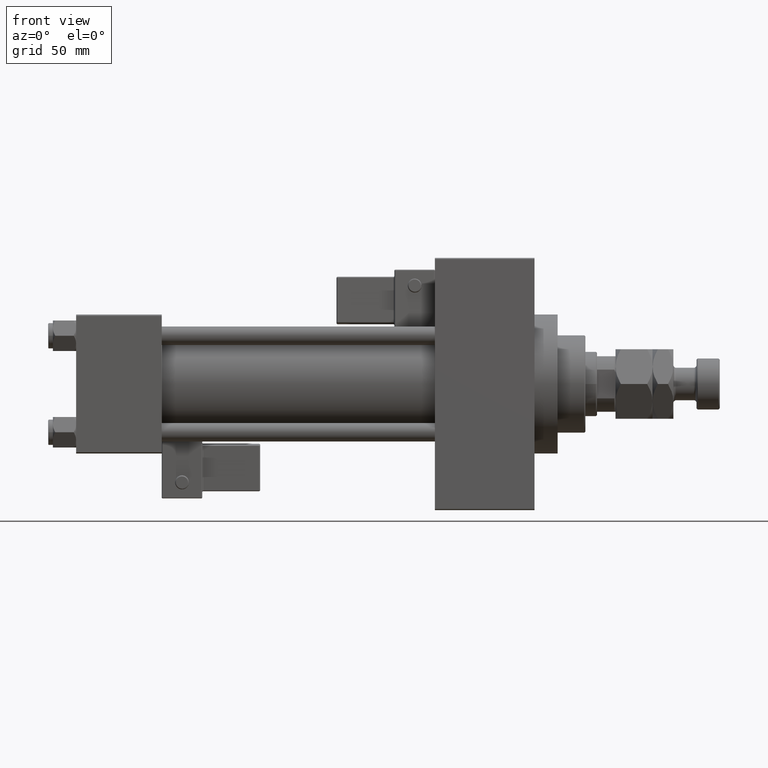
[diagram: clean part render]
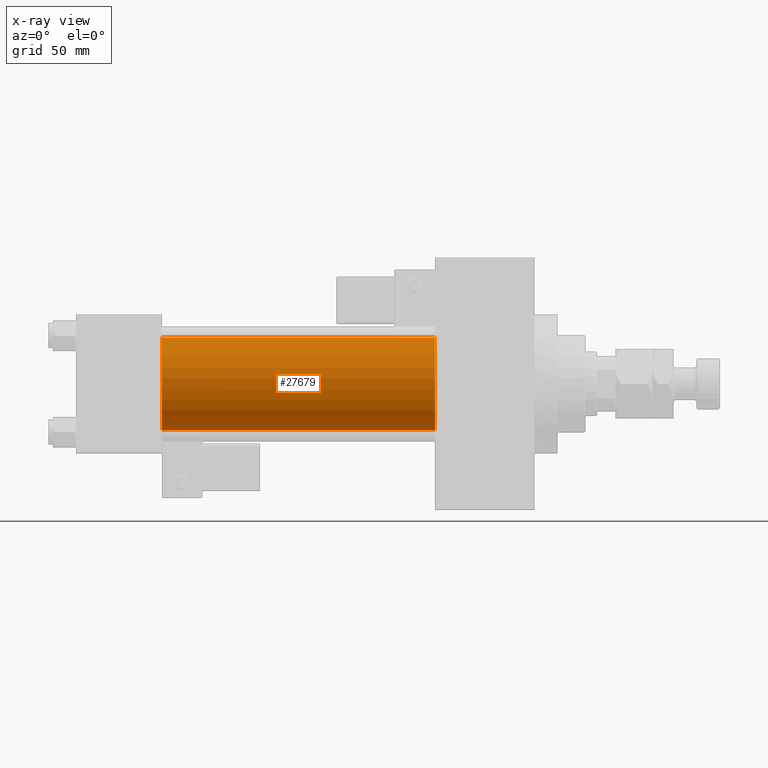
[diagram: x-ray — body ghosted, one internal face saturated and labeled with its STEP entity id]
A machine part, front view, then the same camera in x-ray: the body is ghosted and one INTERNAL B-rep face — a face not visible from any outside direction — is saturated and labeled: STEP entity #27679.
In plain terms, the highlighted cylindrical surface (partial cylindrical patch) has radius 20 mm, axis along (-1, -0, -0).
Its self-contained STEP definition (entity closure, byte-faithful):
#1195 = ORIENTED_EDGE ( 'NONE', *, *, #13751, .T. ) ;
#2102 = VERTEX_POINT ( 'NONE', #9929 ) ;
#3225 = CARTESIAN_POINT ( 'NONE',  ( 155.0000000000000000, -2.602085213965210642E-15, 20.00000000000000000 ) ) ;
#3888 = VERTEX_POINT ( 'NONE', #9836 ) ;
#5284 = CARTESIAN_POINT ( 'NONE',  ( 155.0000000000000000, -2.602085213965210642E-15, 20.00000000000000000 ) ) ;
#7069 = DIRECTION ( 'NONE',  ( -1.000000000000000000, -0.000000000000000000, -0.000000000000000000 ) ) ;
#9699 = EDGE_CURVE ( 'NONE', #45388, #2102, #50797, .T. ) ;
#9836 = CARTESIAN_POINT ( 'NONE',  ( 37.00000000000000000, -1.527916156705042519E-16, -20.00000000000000000 ) ) ;
#9929 = CARTESIAN_POINT ( 'NONE',  ( 37.00000000000000000, -2.602085213965210642E-15, 20.00000000000000000 ) ) ;
#11623 = DIRECTION ( 'NONE',  ( 1.000000000000000000, 0.000000000000000000, 0.000000000000000000 ) ) ;
#13710 = AXIS2_PLACEMENT_3D ( 'NONE', #14875, #7069, #46583 ) ;
#13751 = EDGE_CURVE ( 'NONE', #45388, #18638, #35039, .T. ) ;
#14875 = CARTESIAN_POINT ( 'NONE',  ( 155.0000000000000000, -2.602085213965210642E-15, 0.000000000000000000 ) ) ;
#15437 = DIRECTION ( 'NONE',  ( -1.000000000000000000, -0.000000000000000000, -0.000000000000000000 ) ) ;
#16723 = EDGE_LOOP ( 'NONE', ( #1195, #46784, #43077, #19167 ) ) ;
#18638 = VERTEX_POINT ( 'NONE', #36888 ) ;
#19090 = DIRECTION ( 'NONE',  ( -1.000000000000000000, -0.000000000000000000, -0.000000000000000000 ) ) ;
#19167 = ORIENTED_EDGE ( 'NONE', *, *, #9699, .F. ) ;
#19286 = FACE_OUTER_BOUND ( 'NONE', #16723, .T. ) ;
#19683 = VECTOR ( 'NONE', #15437, 1000.000000000000000 ) ;
#21968 = AXIS2_PLACEMENT_3D ( 'NONE', #39016, #31477, #43427 ) ;
#22484 = CARTESIAN_POINT ( 'NONE',  ( 155.0000000000000000, -1.527916156705042519E-16, -20.00000000000000000 ) ) ;
#25857 = EDGE_CURVE ( 'NONE', #2102, #3888, #37726, .T. ) ;
#26845 = CYLINDRICAL_SURFACE ( 'NONE', #13710, 20.00000000000000000 ) ;
#27679 = ADVANCED_FACE ( 'NONE', ( #19286 ), #26845, .F. ) ;
#31021 = EDGE_CURVE ( 'NONE', #18638, #3888, #38585, .T. ) ;
#31477 = DIRECTION ( 'NONE',  ( 1.000000000000000000, 0.000000000000000000, 0.000000000000000000 ) ) ;
#35039 = CIRCLE ( 'NONE', #40009, 20.00000000000000000 ) ;
#35788 = DIRECTION ( 'NONE',  ( 0.000000000000000000, 0.000000000000000000, -1.000000000000000000 ) ) ;
#36888 = CARTESIAN_POINT ( 'NONE',  ( 155.0000000000000000, -1.527916156705042519E-16, -20.00000000000000000 ) ) ;
#37726 = CIRCLE ( 'NONE', #21968, 20.00000000000000000 ) ;
#38585 = LINE ( 'NONE', #22484, #19683 ) ;
#39016 = CARTESIAN_POINT ( 'NONE',  ( 37.00000000000000000, -2.602085213965210642E-15, 0.000000000000000000 ) ) ;
#40009 = AXIS2_PLACEMENT_3D ( 'NONE', #47244, #11623, #35788 ) ;
#42360 = VECTOR ( 'NONE', #19090, 1000.000000000000000 ) ;
#43077 = ORIENTED_EDGE ( 'NONE', *, *, #25857, .F. ) ;
#43427 = DIRECTION ( 'NONE',  ( 0.000000000000000000, 0.000000000000000000, -1.000000000000000000 ) ) ;
#45388 = VERTEX_POINT ( 'NONE', #5284 ) ;
#46583 = DIRECTION ( 'NONE',  ( 0.000000000000000000, 0.000000000000000000, 1.000000000000000000 ) ) ;
#46784 = ORIENTED_EDGE ( 'NONE', *, *, #31021, .T. ) ;
#47244 = CARTESIAN_POINT ( 'NONE',  ( 155.0000000000000000, -2.602085213965210642E-15, 0.000000000000000000 ) ) ;
#50797 = LINE ( 'NONE', #3225, #42360 ) ;